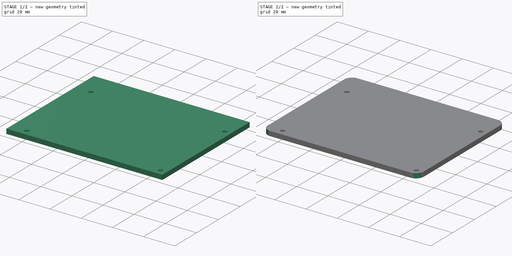
[diagram: build sequence overview — one tinted view per stage of 2, left to right]
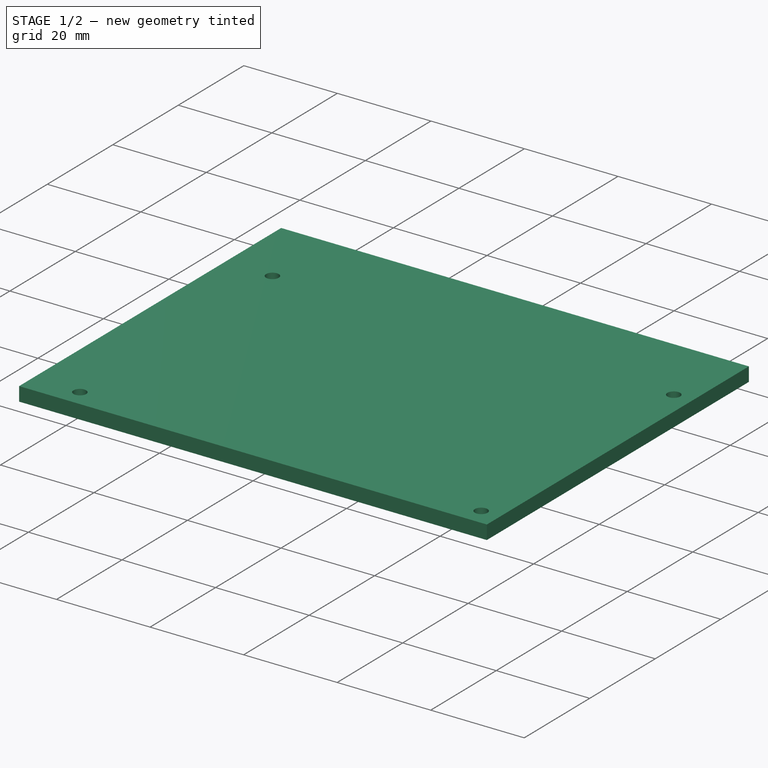
[diagram: stage 1 of 2 — iso view after this stage's code; geometry added in this stage tinted green]
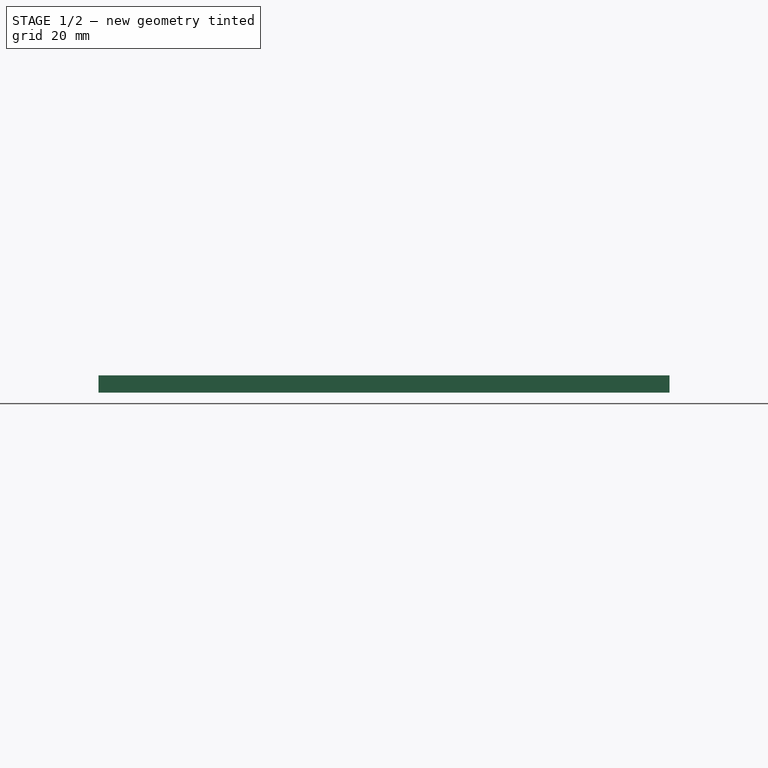
[diagram: stage 1 of 2 — front view after this stage's code; geometry added in this stage tinted green]
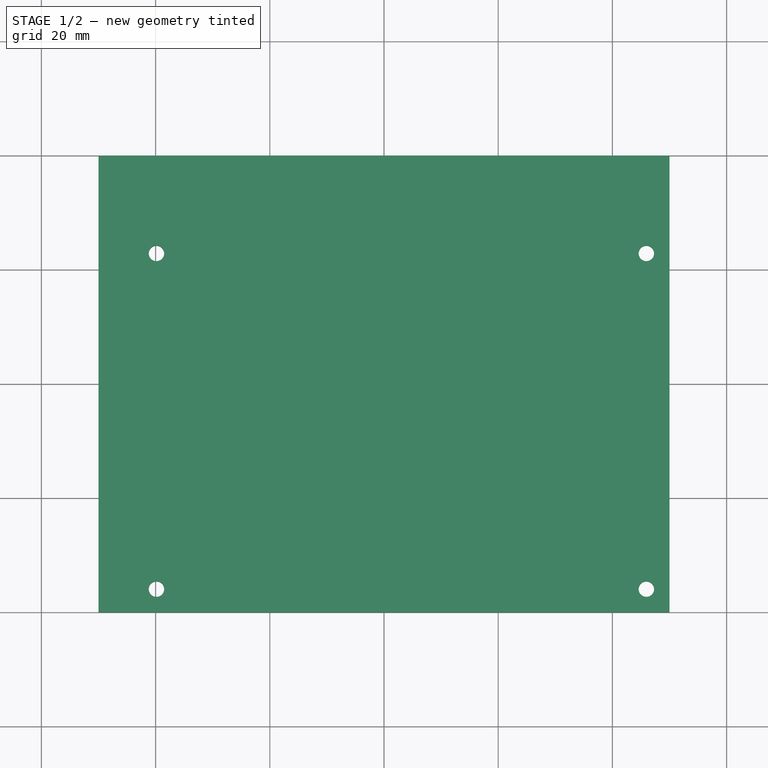
[diagram: stage 1 of 2 — top view after this stage's code; geometry added in this stage tinted green]
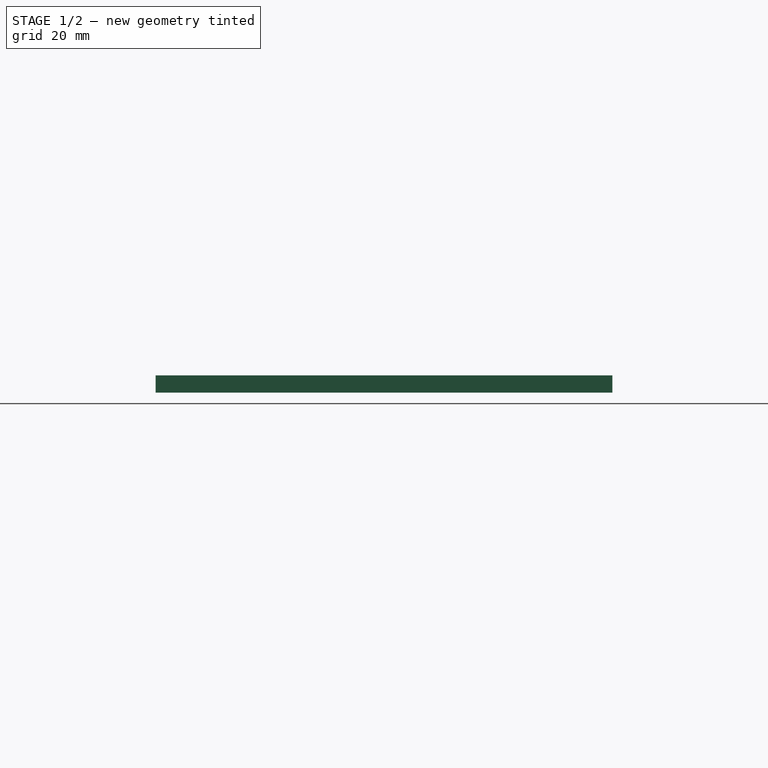
[diagram: stage 1 of 2 — right view after this stage's code; geometry added in this stage tinted green]
FCSTD DOCUMENT  (FreeCAD 1.0R39109 (Git))
Label: suporte-jetson-nano
License: All rights reserved
LicenseURL: https://en.wikipedia.org/wiki/All_rights_reserved
objects: Sketcher::SketchObject×2, PartDesign::Pad×1, PartDesign::Pocket×1, PartDesign::Fillet×1, PartDesign::Body×1
note: 14 computed .brp shape members not serialized (recipe doc carries the construction recipe); baked Part::Feature solids carry a one-line shape summary decoded from their .brp

FEATURE [Sketcher::SketchObject] Sketch
  ArcFitTolerance = 0
  AttachmentSupport = -> [XY_Plane]
  FullyConstrained = true
  MakeInternals = false
  MapMode = 5
  sketch-geometry (20):
    g0: LineSegment StartX=-50 StartY=40 StartZ=0 EndX=50 EndY=40 EndZ=0
    g1: LineSegment StartX=50 StartY=40 StartZ=0 EndX=50 EndY=-40 EndZ=0
    g2: LineSegment StartX=50 StartY=-40 StartZ=0 EndX=-50 EndY=-40 EndZ=0
    g3: LineSegment StartX=-50 StartY=-40 StartZ=0 EndX=-50 EndY=40 EndZ=0
    g4: LineSegment [constr] StartX=-39.85 StartY=22.85 StartZ=0 EndX=45.95 EndY=22.85 EndZ=0
    g5: LineSegment [constr] StartX=45.95 StartY=22.85 StartZ=0 EndX=45.95 EndY=-35.95 EndZ=0
    g6: LineSegment [constr] StartX=45.95 StartY=-35.95 StartZ=0 EndX=-39.85 EndY=-35.95 EndZ=0
    g7: LineSegment [constr] StartX=-39.85 StartY=-35.95 StartZ=0 EndX=-39.85 EndY=22.85 EndZ=0
    g8: Circle [constr] CenterX=-39.85 CenterY=22.85 CenterZ=0 NormalX=0 NormalY=0 NormalZ=1 AngleXU=0 Radius=1.25
    g9: Circle [constr] CenterX=-39.85 CenterY=-35.95 CenterZ=0 NormalX=0 NormalY=0 NormalZ=1 AngleXU=0 Radius=1.25
    g10: Circle [constr] CenterX=45.95 CenterY=-35.95 CenterZ=0 NormalX=0 NormalY=0 NormalZ=1 AngleXU=0 Radius=1.25
    g11: Circle [constr] CenterX=45.95 CenterY=22.85 CenterZ=0 NormalX=0 NormalY=0 NormalZ=1 AngleXU=0 Radius=1.25
    g12: LineSegment [constr] StartX=-41.1 StartY=24.1 StartZ=0 EndX=47.2 EndY=24.1 EndZ=0
    g13: LineSegment [constr] StartX=47.2 StartY=24.1 StartZ=0 EndX=47.2 EndY=-37.2 EndZ=0
    g14: LineSegment [constr] StartX=47.2 StartY=-37.2 StartZ=0 EndX=-41.1 EndY=-37.2 EndZ=0
    g15: LineSegment [constr] StartX=-41.1 StartY=-37.2 StartZ=0 EndX=-41.1 EndY=24.1 EndZ=0
    g16: Circle CenterX=-39.85 CenterY=22.85 CenterZ=0 NormalX=0 NormalY=0 NormalZ=1 AngleXU=0 Radius=1.35
    g17: Circle CenterX=45.95 CenterY=22.85 CenterZ=0 NormalX=0 NormalY=0 NormalZ=1 AngleXU=0 Radius=1.35
    g18: Circle CenterX=-39.85 CenterY=-35.95 CenterZ=0 NormalX=0 NormalY=0 NormalZ=1 AngleXU=0 Radius=1.35
    g19: Circle CenterX=45.95 CenterY=-35.95 CenterZ=0 NormalX=0 NormalY=0 NormalZ=1 AngleXU=0 Radius=1.35
  constraints (50):
    c: Coincident(g0,g1)
    c: Coincident(g1,g2)
    c: Coincident(g2,g3)
    c: Coincident(g3,g0)
    c: Horizontal(g2)
    c: Vertical(g1)
    c: Symmetric(g0,g0,g-2)
    c: Symmetric(g2,g0,g-1)
    c: DistanceY(g3,g3) = 80
    c: DistanceX(g0,g0) = 100
    c: Coincident(g4,g5)
    c: Coincident(g5,g6)
    c: Coincident(g6,g7)
    c: Coincident(g7,g4)
    c: Horizontal(g4)
    c: Horizontal(g6)
    c: Vertical(g5)
    c: Vertical(g7)
    c: Coincident(g8,g4)
    c: Coincident(g9,g6)
    c: Coincident(g10,g5)
    c: Coincident(g11,g4)
    c: Equal(g11,g10)
    c: Equal(g10,g9)
    c: Equal(g9,g8)
    c: Diameter(g8) = 2.5
    c: Coincident(g12,g13)
    c: Coincident(g13,g14)
    c: Coincident(g14,g15)
    c: Coincident(g15,g12)
    c: Horizontal(g12)
    c: Horizontal(g14)
    c: Vertical(g13)
    c: Vertical(g15)
    c: Tangent(g14,g10)
    c: Tangent(g8,g12)
    c: Tangent(g9,g15)
    c: DistanceY(g2,g14) = 2.8
    c: Tangent(g13,g11)
    c: DistanceX(g13,g1) = 2.8
    c: DistanceY(g12,g0) = 15.9
    c: DistanceX(g0,g12) = 8.9
    c: Coincident(g16,g4)
    c: Coincident(g17,g4)
    c: Coincident(g18,g6)
    c: Coincident(g19,g5)
    c: Equal(g19,g18)
    c: Equal(g18,g16)
    c: Equal(g16,g17)
    c: Diameter(g17) = 2.7
FEATURE [PartDesign::Pad] Pad
  Direction = (0,0,1)
  Length = 3
  Length2 = 10
  Profile = -> Sketch
  ReferenceAxis = -> Sketch [N_Axis]
  Suppressed = false
  Type = 0
FEATURE [Sketcher::SketchObject] Sketch001
  ArcFitTolerance = 0
  AttachmentSupport = -> [Pad]
  ExternalGeometry = -> [Pad]
  FullyConstrained = true
  MakeInternals = false
  MapMode = 5
  Placement = pos=(0,0,0) rot=(1,0,0;3.14159rad)
  sketch-geometry (11):
    g0: LineSegment StartX=-35.35 StartY=35 StartZ=0 EndX=35.35 EndY=35 EndZ=0
    g1: LineSegment StartX=35.35 StartY=35 StartZ=0 EndX=35.35 EndY=14.8 EndZ=0
    g2: LineSegment StartX=35.35 StartY=14.8 StartZ=0 EndX=-35.35 EndY=14.8 EndZ=0
    g3: LineSegment StartX=-35.35 StartY=14.8 StartZ=0 EndX=-35.35 EndY=35 EndZ=0
    g4: LineSegment StartX=-35.35 StartY=-14.8 StartZ=0 EndX=35.35 EndY=-14.8 EndZ=0
    g5: LineSegment StartX=35.35 StartY=-14.8 StartZ=0 EndX=35.35 EndY=-35 EndZ=0
    g6: LineSegment StartX=35.35 StartY=-35 StartZ=0 EndX=-35.35 EndY=-35 EndZ=0
    g7: LineSegment StartX=-35.35 StartY=-35 StartZ=0 EndX=-35.35 EndY=-14.8 EndZ=0
    g8: LineSegment [constr] StartX=-35.35 StartY=-40 StartZ=0 EndX=-35.35 EndY=-35 EndZ=0
    g9: LineSegment [constr] StartX=-35.35 StartY=-14.8 StartZ=0 EndX=-35.35 EndY=14.8 EndZ=0
    g10: LineSegment [constr] StartX=-35.35 StartY=35 StartZ=0 EndX=-35.35 EndY=40 EndZ=0
  constraints (30):
    c: Coincident(g0,g1)
    c: Coincident(g1,g2)
    c: Coincident(g2,g3)
    c: Coincident(g3,g0)
    c: Horizontal(g2)
    c: Vertical(g1)
    c: Vertical(g3)
    c: Coincident(g4,g5)
    c: Coincident(g5,g6)
    c: Coincident(g6,g7)
    c: Coincident(g7,g4)
    c: Horizontal(g6)
    c: Vertical(g5)
    c: Vertical(g7)
    c: Symmetric(g4,g4,g-2)
    c: Symmetric(g0,g0,g-2)
    c: Equal(g0,g4)
    c: Equal(g7,g3)
    c: PointOnObject(g8,g-4)
    c: Coincident(g8,g6)
    c: Coincident(g9,g4)
    c: Coincident(g10,g0)
    c: PointOnObject(g10,g-3)
    c: Coincident(g9,g2)
    c: DistanceY(g3,g3) = 20.2
    c: Vertical(g8)
    c: Vertical(g10)
    c: DistanceX(g0,g0) = 70.7
    c: DistanceY(g0,g10) = 5
    c: Equal(g10,g8)
FEATURE [PartDesign::Pocket] Pocket
  BaseFeature = -> Pad
  Direction = (0,0,1)
  Length = 2
  Length2 = 5
  Profile = -> Sketch001
  ReferenceAxis = -> Sketch001 [N_Axis]
  Suppressed = false
  Type = 0
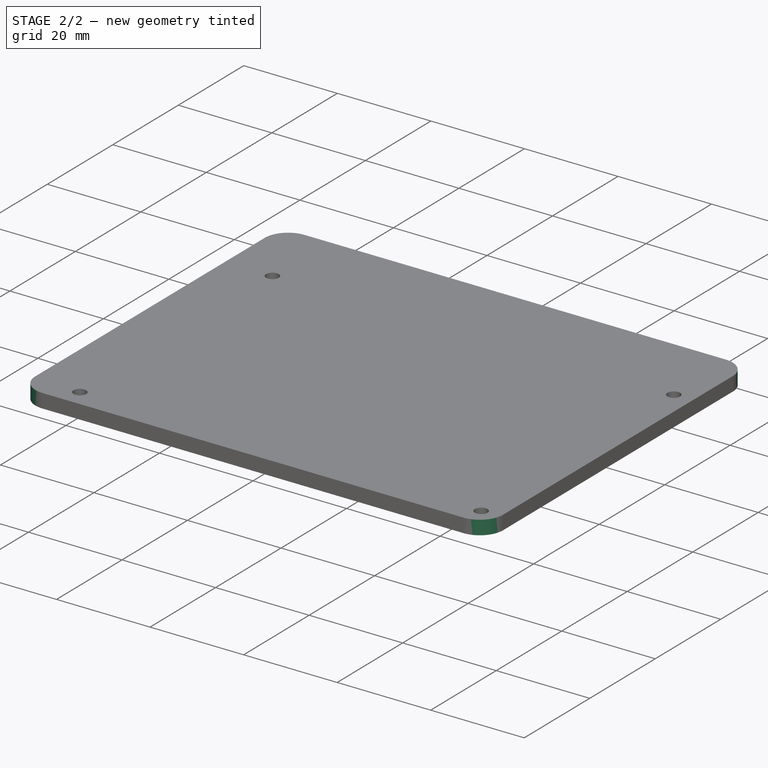
[diagram: stage 2 of 2 — iso view after this stage's code; geometry added in this stage tinted green]
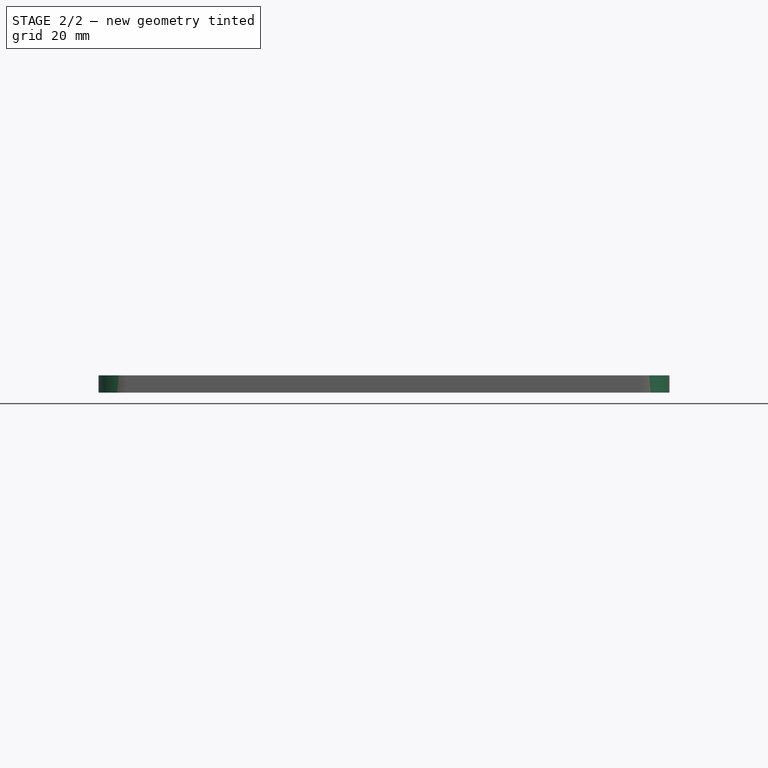
[diagram: stage 2 of 2 — front view after this stage's code; geometry added in this stage tinted green]
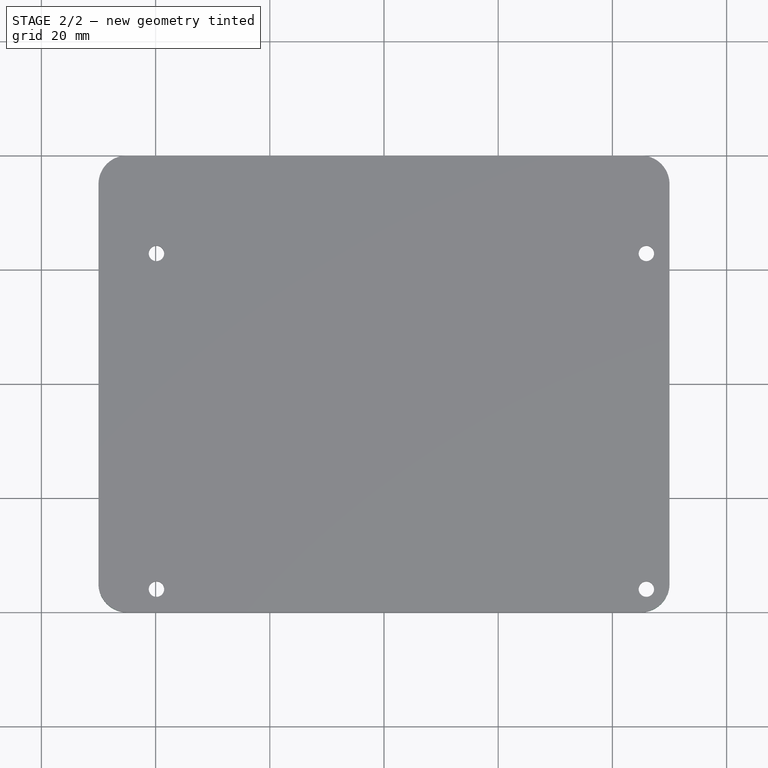
[diagram: stage 2 of 2 — top view after this stage's code; geometry added in this stage tinted green]
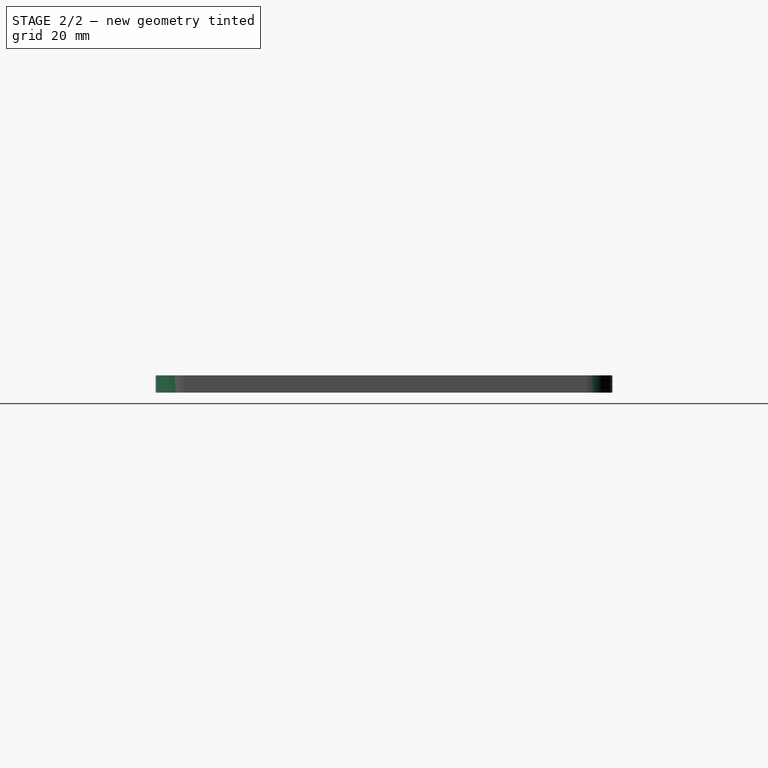
[diagram: stage 2 of 2 — right view after this stage's code; geometry added in this stage tinted green]
FEATURE [PartDesign::Fillet] Fillet
  Base = -> Pocket [Edge1,Edge2,Edge5,Edge8]
  BaseFeature = -> Pocket
  Radius = 5
  SupportTransform = false
  Suppressed = false
  UseAllEdges = false
FEATURE [PartDesign::Body] Body
  AllowCompound = false
  Group = -> [Sketch,Pad,Sketch001,Pocket,Fillet]
  Origin = -> Origin
  Tip = -> Fillet
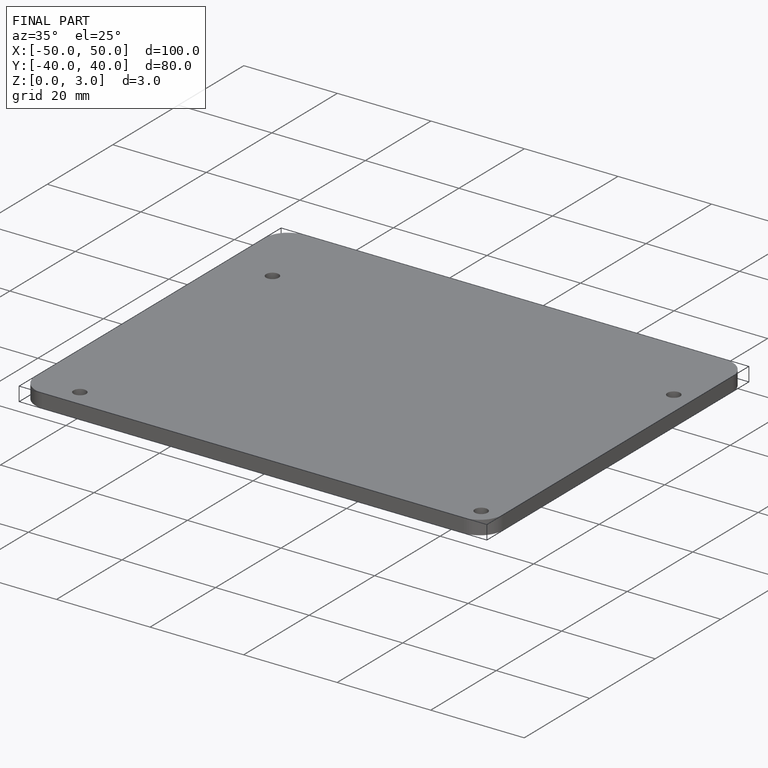
[diagram: finished part — iso view with bounding-box wireframe]
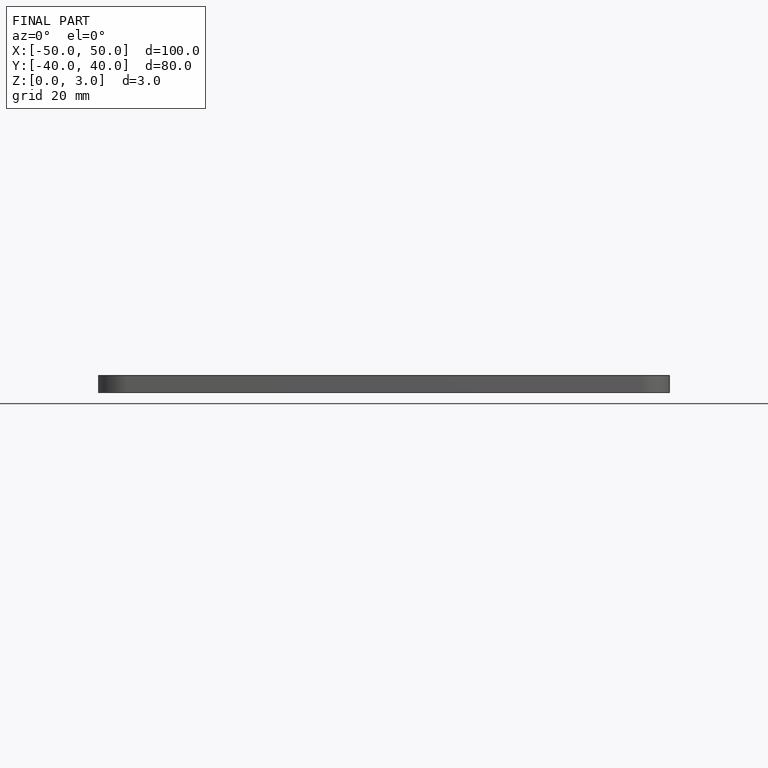
[diagram: finished part — front view with bounding-box wireframe]
